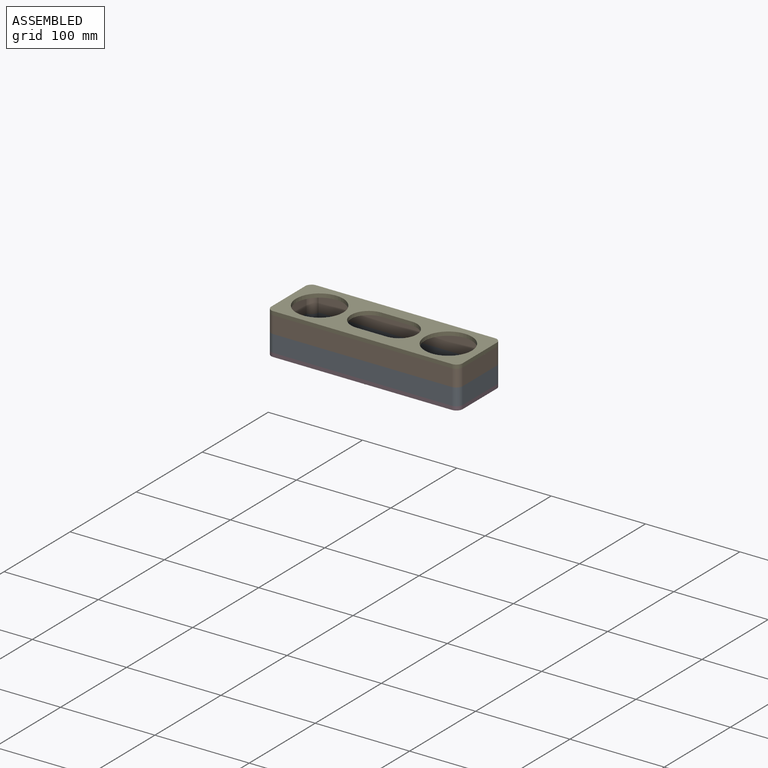
[diagram: assembled view]
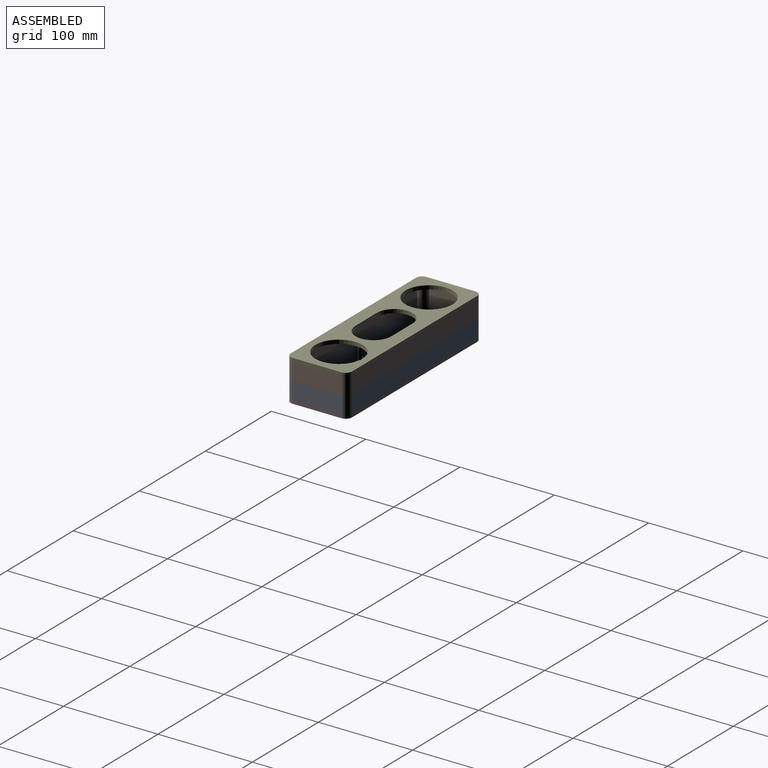
[diagram: assembled view, second angle]
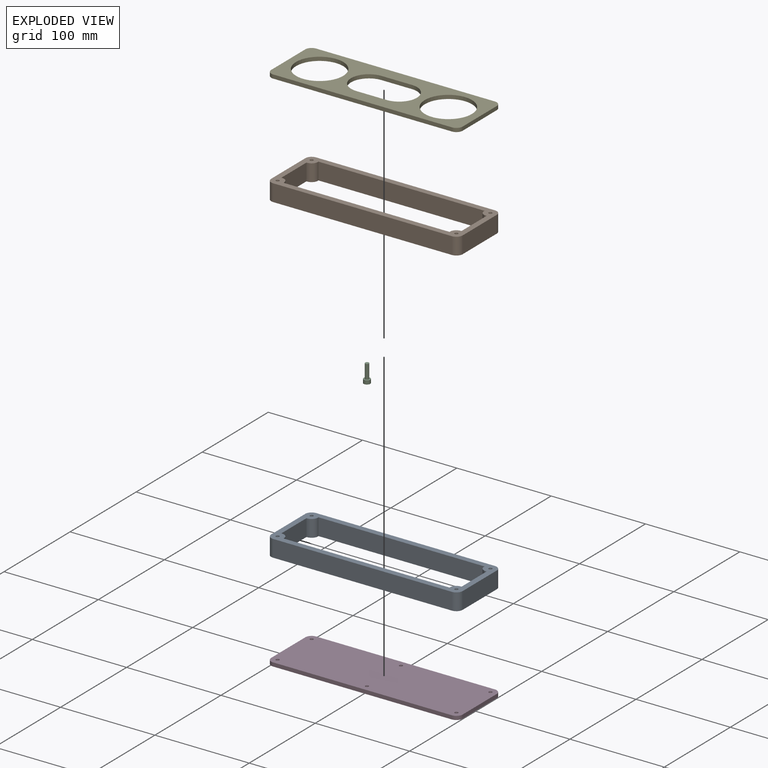
[diagram: exploded view]
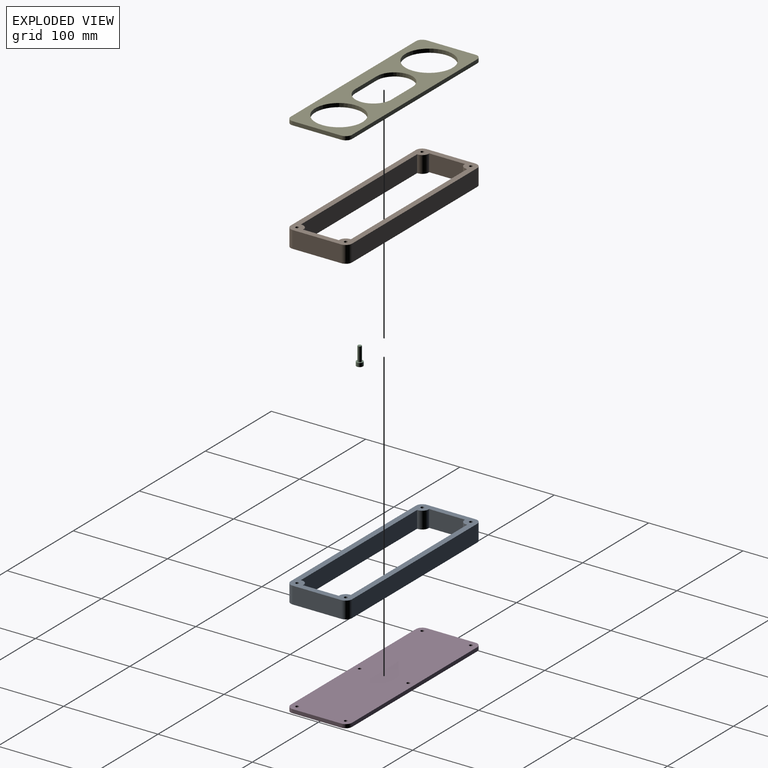
[diagram: exploded view, second angle]
ASSEMBLY  parts=5 mates=4
PART A: 22 faces, bbox 203x65x18 mm
  f0: plane 176.08x18mm, normal (0,1,0), area 3169.5mm2, adj f1,f14,f20,f21
  f1: cylinder r=6.75mm len=18mm, axis (0,0,-1), area 217.9mm2, adj f0,f2,f20,f21
  f2: plane 38.08x18mm, normal (1,0,0), area 685.5mm2, adj f1,f3,f20,f21
  f3: cylinder r=6.75mm len=18mm, axis (0,0,-1), area 217.9mm2, adj f2,f4,f20,f21
  f4: plane 176.08x18mm, normal (0,-1,0), area 3169.5mm2, adj f3,f5,f20,f21
  f5: cylinder r=6.75mm len=18mm, axis (0,0,-1), area 217.9mm2, adj f4,f6,f20,f21
  f6: plane 38.08x18mm, normal (-1,0,0), area 685.5mm2, adj f5,f14,f20,f21
  f7: cylinder r=6.75mm len=18mm, axis (0,0,-1), area 190.9mm2, adj f8,f15,f20,f21
  f8: plane 189.5x18mm, normal (0,1,0), area 3411mm2, adj f7,f9,f20,f21
  f9: cylinder r=6.75mm len=18mm, axis (0,0,-1), area 190.9mm2, adj f8,f10,f20,f21
  f10: plane 51.5x18mm, normal (-1,0,0), area 927mm2, adj f9,f11,f20,f21
  f11: cylinder r=6.75mm len=18mm, axis (0,0,-1), area 190.9mm2, adj f10,f12,f20,f21
  f12: plane 189.5x18mm, normal (0,-1,0), area 3411mm2, adj f11,f13,f20,f21
  f13: cylinder r=6.75mm len=18mm, axis (0,0,-1), area 190.9mm2, adj f12,f15,f20,f21
  f14: cylinder r=6.75mm len=18mm, axis (0,0,-1), area 217.9mm2, adj f0,f6,f20,f21
  f15: plane 51.5x18mm, normal (1,0,0), area 927mm2, adj f7,f13,f20,f21
  f16: cylinder r=1.75mm len=18mm, axis (0,0,-1), area 197.9mm2, adj f20,f21
  f17: cylinder r=1.75mm len=18mm, axis (0,0,-1), area 197.9mm2, adj f20,f21
  f18: cylinder r=1.75mm len=18mm, axis (0,0,-1), area 197.9mm2, adj f20,f21
  f19: cylinder r=1.75mm len=18mm, axis (0,0,-1), area 197.9mm2, adj f20,f21
  f20: plane 203x65mm, normal (0,0,1), area 3180.2mm2, adj f0,f1,f2,f3,f4,f5,f6,f7
  f21: plane 203x65mm, normal (0,0,-1), area 3180.2mm2, adj f0,f1,f2,f3,f4,f5,f6,f7
PART B: same geometry as A
PART C: 12 faces, bbox 7x7x19 mm
  f0: plane 7x7mm, normal (0,0,1), area 24.6mm2, adj f1,f3,f4,f5,f6,f7,f8
  f1: cylinder r=3.5mm len=7mm, axis (0,0,-1), area 88mm2, adj f0,f2
  f2: plane 7x7mm, normal (0,0,-1), area 25.9mm2, adj f1,f10
  f3: plane 2x2mm, normal (-0.5,-0.87,0), area 4.6mm2, adj f0,f4,f8,f9
  f4: plane 2x2mm, normal (0.5,-0.87,0), area 4.6mm2, adj f0,f3,f5,f9
  f5: plane 2.31x2mm, normal (1,0,0), area 4.6mm2, adj f0,f4,f6,f9
  f6: plane 2x2mm, normal (0.5,0.87,0), area 4.6mm2, adj f0,f5,f7,f9
  f7: plane 2x2mm, normal (-0.5,0.87,0), area 4.6mm2, adj f0,f6,f8,f9
  f8: plane 2.31x2mm, normal (-1,0,0), area 4.6mm2, adj f0,f3,f7,f9
  f9: plane 4.62x4mm, normal (0,0,1), area 13.9mm2, adj f3,f4,f5,f6,f7,f8
  f10: cylinder r=2mm len=15mm, axis (0,0,1), area 188.5mm2, adj f2,f11
  f11: plane 4x4mm, normal (0,0,-1), area 12.6mm2, adj f10
PART D: 28 faces, bbox 203x65x4 mm
  f0: cylinder r=6.75mm len=6.75mm, axis (0,0,-1), area 42.4mm2, adj f1,f11,f14,f15
  f1: plane 189.5x4mm, normal (0,1,0), area 758mm2, adj f0,f2,f14,f15
  f2: cylinder r=6.75mm len=6.75mm, axis (0,0,-1), area 42.4mm2, adj f1,f3,f14,f15
  f3: plane 51.5x4mm, normal (-1,0,0), area 206mm2, adj f2,f4,f14,f15
  f4: cylinder r=6.75mm len=6.75mm, axis (0,0,-1), area 42.4mm2, adj f3,f5,f14,f15
  f5: plane 189.5x4mm, normal (0,-1,0), area 758mm2, adj f4,f6,f14,f15
  f6: cylinder r=6.75mm len=6.75mm, axis (0,0,-1), area 42.4mm2, adj f5,f11,f14,f15
  f7: cylinder r=3.75mm len=7.5mm, axis (0,0,-1), area 47.1mm2, adj f14,f25
  f8: cylinder r=3.75mm len=7.5mm, axis (0,0,-1), area 47.1mm2, adj f14,f23
  f9: cylinder r=3.75mm len=7.5mm, axis (0,0,-1), area 47.1mm2, adj f14,f19
  f10: cylinder r=3.75mm len=7.5mm, axis (0,0,-1), area 47.1mm2, adj f14,f17
  f11: plane 51.5x4mm, normal (1,0,0), area 206mm2, adj f0,f6,f14,f15
  f12: cylinder r=3.75mm len=7.5mm, axis (0,0,-1), area 47.1mm2, adj f14,f21
  f13: cylinder r=3.75mm len=7.5mm, axis (0,0,-1), area 47.1mm2, adj f14,f27
  f14: plane 203x65mm, normal (0,0,1), area 12890.8mm2, adj f0,f1,f2,f3,f4,f5,f6,f7
  f15: plane 203x65mm, normal (0,0,-1), area 13098.2mm2, adj f0,f1,f2,f3,f4,f5,f6,f11
  f16: cylinder r=1.75mm len=3.5mm, axis (0,0,-1), area 22mm2, adj f15,f17
  f17: plane 7.5x7.5mm, normal (0,0,1), area 34.6mm2, adj f10,f16
  f18: cylinder r=1.75mm len=3.5mm, axis (0,0,-1), area 22mm2, adj f15,f19
  f19: plane 7.5x7.5mm, normal (0,0,1), area 34.6mm2, adj f9,f18
  f20: cylinder r=1.75mm len=3.5mm, axis (0,0,-1), area 22mm2, adj f15,f21
  f21: plane 7.5x7.5mm, normal (0,0,1), area 34.6mm2, adj f12,f20
  f22: cylinder r=1.75mm len=3.5mm, axis (0,0,-1), area 22mm2, adj f15,f23
  f23: plane 7.5x7.5mm, normal (0,0,1), area 34.6mm2, adj f8,f22
  f24: cylinder r=1.75mm len=3.5mm, axis (0,0,-1), area 22mm2, adj f15,f25
  f25: plane 7.5x7.5mm, normal (0,0,1), area 34.6mm2, adj f7,f24
  f26: cylinder r=1.75mm len=3.5mm, axis (0,0,-1), area 22mm2, adj f15,f27
  f27: plane 7.5x7.5mm, normal (0,0,1), area 34.6mm2, adj f13,f26
PART E: 16 faces, bbox 203x65x4 mm
  f0: plane 32x4mm, normal (0,-1,0), area 128mm2, adj f1,f11,f14,f15
  f1: cylinder r=19mm len=38mm, axis (0,0,-1), area 238.8mm2, adj f0,f2,f14,f15
  f2: plane 32x4mm, normal (0,1,0), area 128mm2, adj f1,f11,f14,f15
  f3: cylinder r=6.75mm len=6.75mm, axis (0,0,-1), area 42.4mm2, adj f4,f12,f14,f15
  f4: plane 189.5x4mm, normal (0,1,0), area 758mm2, adj f3,f5,f14,f15
  f5: cylinder r=6.75mm len=6.75mm, axis (0,0,-1), area 42.4mm2, adj f4,f6,f14,f15
  f6: plane 51.5x4mm, normal (-1,0,0), area 206mm2, adj f5,f7,f14,f15
  f7: cylinder r=6.75mm len=6.75mm, axis (0,0,-1), area 42.4mm2, adj f6,f8,f14,f15
  f8: plane 189.5x4mm, normal (0,-1,0), area 758mm2, adj f7,f9,f14,f15
  f9: cylinder r=6.75mm len=6.75mm, axis (0,0,-1), area 42.4mm2, adj f8,f12,f14,f15
  f10: cylinder r=25mm len=50mm, axis (0,0,-1), area 628.3mm2, adj f14,f15
  f11: cylinder r=19mm len=38mm, axis (0,0,-1), area 238.8mm2, adj f0,f2,f14,f15
  f12: plane 51.5x4mm, normal (1,0,0), area 206mm2, adj f3,f9,f14,f15
  f13: cylinder r=25mm len=50mm, axis (0,0,-1), area 628.3mm2, adj f14,f15
  f14: plane 203x65mm, normal (0,0,1), area 6878.8mm2, adj f0,f1,f2,f3,f4,f5,f6,f7
  f15: plane 203x65mm, normal (0,0,-1), area 6878.8mm2, adj f0,f1,f2,f3,f4,f5,f6,f7
PLACE A t=(2.13,1.07,-38.24)mm
PLACE B t=(2.13,1.07,-20.24)mm
PLACE C rot(axis=(1,0,0),180deg) t=(2.13,-24.68,-40.24)mm
PLACE D rot(axis=(0,1,0),180deg) t=(2.13,1.07,-38.24)mm
PLACE E t=(2.13,1.07,-2.24)mm
MATE parallel C.f1 <-> D.f13  axis (0,0,1) through (2.13,-24.68,-40.24)mm
MATE parallel D.f15 <-> A.f21  axis (0,0,1) through (-92.62,-31.43,-38.24)mm
MATE parallel B.f20 <-> E.f15  axis (0,0,-1) through (96.88,33.57,-2.24)mm
MATE parallel A.f20 <-> B.f21  axis (0,0,1) through (103.63,26.82,-20.24)mm
